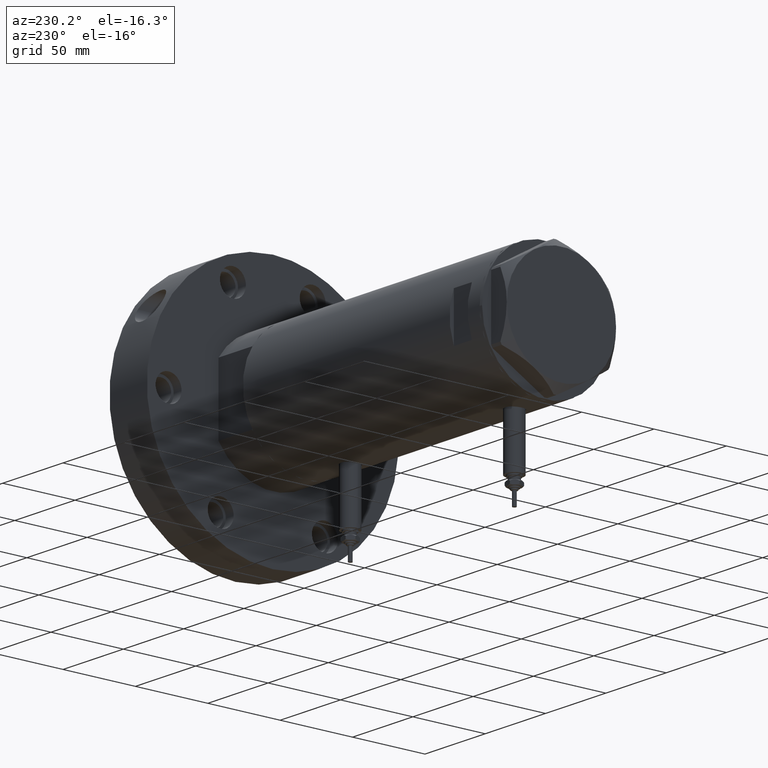
[diagram: clean part render]
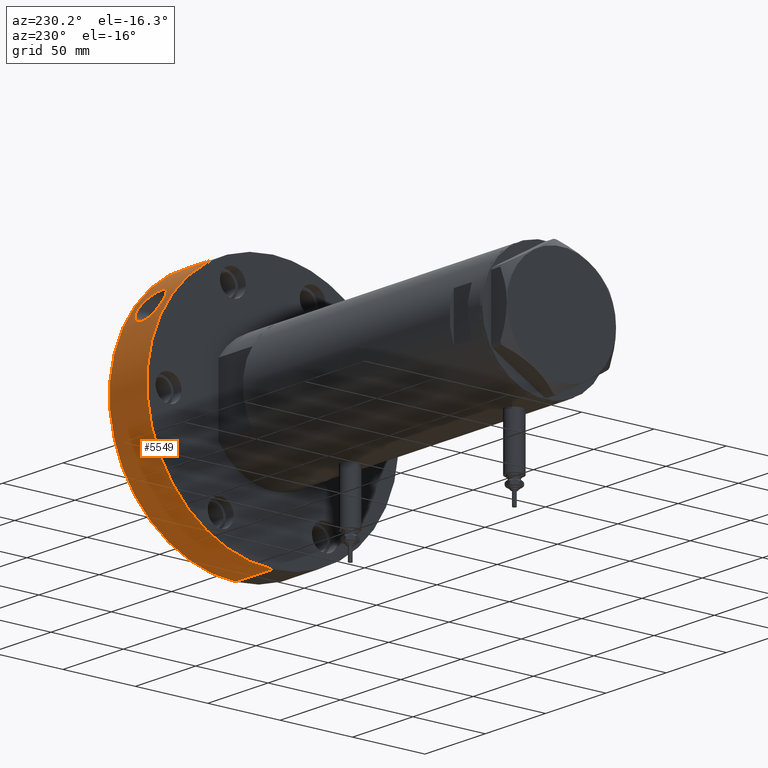
[diagram: same view with one face highlighted and labeled with its STEP entity id]
A machine part, auxiliary view. The second image highlights one B-rep face of the part: STEP entity #5549.
In plain terms, the highlighted cylindrical surface (partial cylindrical patch) has radius 87 mm, axis along (-1, -0, 0).
Its self-contained STEP definition (entity closure, byte-faithful):
#4 = FACE_OUTER_BOUND ( 'NONE', #3415, .T. ) ;
#80 = CARTESIAN_POINT ( 'NONE',  ( 0.000000000000000000, 0.000000000000000000, 31.00000000000000000 ) ) ;
#107 = CARTESIAN_POINT ( 'NONE',  ( 38.95988362184586862, -77.78916722937515260, 16.89377856008809786 ) ) ;
#113 = DIRECTION ( 'NONE',  ( 0.000000000000000000, 0.000000000000000000, 1.000000000000000000 ) ) ;
#253 = CARTESIAN_POINT ( 'NONE',  ( 58.45490391147726683, -64.43639444010645434, 18.43080107607583429 ) ) ;
#328 = CARTESIAN_POINT ( 'NONE',  ( 48.88736590573034135, -71.96544625581941546, 25.50000000000000355 ) ) ;
#453 = CARTESIAN_POINT ( 'NONE',  ( 48.30247523277547828, -72.36018339024451507, 5.512723200080522190 ) ) ;
#477 = CARTESIAN_POINT ( 'NONE',  ( 53.02903169051857901, -68.97411671335549954, 6.377693417634801243 ) ) ;
#572 = CARTESIAN_POINT ( 'NONE',  ( 48.29735643758040453, -72.36624983945537792, 25.50000000000000355 ) ) ;
#606 = CARTESIAN_POINT ( 'NONE',  ( 42.36562863129233136, -75.98835629832981908, 23.08783937509058859 ) ) ;
#616 = DIRECTION ( 'NONE',  ( -0.000000000000000000, -0.000000000000000000, -1.000000000000000000 ) ) ;
#643 = CARTESIAN_POINT ( 'NONE',  ( 39.61878507390480308, -77.45564713954691172, 19.27011269582959230 ) ) ;
#686 = CARTESIAN_POINT ( 'NONE',  ( 0.000000000000000000, 0.000000000000000000, 0.000000000000000000 ) ) ;
#717 = CARTESIAN_POINT ( 'NONE',  ( 41.63827508352151341, -76.39084485103563793, 22.41983642055535952 ) ) ;
#751 = CARTESIAN_POINT ( 'NONE',  ( 54.61841362371032460, -67.72203587842405170, 23.71765578647217154 ) ) ;
#785 = CARTESIAN_POINT ( 'NONE',  ( 55.11451432259645600, -67.31835582116227101, 23.34986043229104169 ) ) ;
#820 = CARTESIAN_POINT ( 'NONE',  ( 57.63933012192551786, -65.16799827479479745, 20.38841847042495203 ) ) ;
#1001 = CARTESIAN_POINT ( 'NONE',  ( 58.09994759138778875, -64.75673879964510604, 11.59481672407559927 ) ) ;
#1022 = CIRCLE ( 'NONE', #2113, 87.00000000000000000 ) ;
#1037 = EDGE_CURVE ( 'NONE', #1681, #5697, #4817, .T. ) ;
#1045 = CARTESIAN_POINT ( 'NONE',  ( 56.50825420125469378, -66.15204602723233052, 8.991213793478745941 ) ) ;
#1094 = CARTESIAN_POINT ( 'NONE',  ( 42.64180251691987422, -75.83379968572944563, 7.683521747921729705 ) ) ;
#1139 = CARTESIAN_POINT ( 'NONE',  ( 40.41186295034255238, -77.04600809697576835, 10.14952324619769186 ) ) ;
#1155 = CARTESIAN_POINT ( 'NONE',  ( 87.00000000000000000, 1.065442715258197209E-14, 31.00000000000000000 ) ) ;
#1177 = CARTESIAN_POINT ( 'NONE',  ( 41.19291114662049580, -76.63125815502247917, 21.92345781722694653 ) ) ;
#1183 = DIRECTION ( 'NONE',  ( -1.000000000000000000, 0.000000000000000000, 0.000000000000000000 ) ) ;
#1184 = DIRECTION ( 'NONE',  ( -0.000000000000000000, -0.000000000000000000, -1.000000000000000000 ) ) ;
#1211 = CARTESIAN_POINT ( 'NONE',  ( 43.13941957114678871, -75.55183523772372212, 23.68944091698644172 ) ) ;
#1333 = EDGE_CURVE ( 'NONE', #3872, #4019, #4024, .T. ) ;
#1424 = CARTESIAN_POINT ( 'NONE',  ( 58.78095589917617758, -64.13893111091917376, 17.00162239926524066 ) ) ;
#1651 = CARTESIAN_POINT ( 'NONE',  ( 58.86845079428158556, -64.05863403617424012, 14.77990071800907756 ) ) ;
#1681 = VERTEX_POINT ( 'NONE', #1155 ) ;
#1703 = CARTESIAN_POINT ( 'NONE',  ( 39.26839487458889977, -77.63389385061502423, 12.67678287845633633 ) ) ;
#1746 = CARTESIAN_POINT ( 'NONE',  ( 41.67513245503538855, -76.36915549097781764, 8.564920305269007272 ) ) ;
#1785 = CARTESIAN_POINT ( 'NONE',  ( 42.39135610311853242, -75.97400373247496930, 7.890215909102982650 ) ) ;
#1887 = CARTESIAN_POINT ( 'NONE',  ( 49.50757850598159848, -71.54412516486078744, 25.50000000000000355 ) ) ;
#1901 = CARTESIAN_POINT ( 'NONE',  ( 87.00000000000000000, 1.065442715258197209E-14, 0.000000000000000000 ) ) ;
#1924 = CARTESIAN_POINT ( 'NONE',  ( 51.88226471496078318, -69.84080568288156599, 25.06036747686935229 ) ) ;
#1948 = CARTESIAN_POINT ( 'NONE',  ( 40.05951066972011887, -77.22870777727329994, 20.21032391934446792 ) ) ;
#1999 = CARTESIAN_POINT ( 'NONE',  ( 53.56654940578292212, -68.55469073411514103, 24.34301470514751387 ) ) ;
#2064 = CARTESIAN_POINT ( 'NONE',  ( 50.10545953346755255, -71.12653177801945503, 5.555886073667557490 ) ) ;
#2105 = CARTESIAN_POINT ( 'NONE',  ( 51.89300993289825925, -69.83281820552377894, 5.943014238919324121 ) ) ;
#2113 = AXIS2_PLACEMENT_3D ( 'NONE', #7366, #4459, #6296 ) ;
#2146 = CARTESIAN_POINT ( 'NONE',  ( 49.50033039789038014, -71.54904892940078298, 5.499999999999995559 ) ) ;
#2157 = VERTEX_POINT ( 'NONE', #6840 ) ;
#2200 = CARTESIAN_POINT ( 'NONE',  ( 46.52813420994646521, -73.51616245379780423, 5.763780444131694658 ) ) ;
#2202 = DIRECTION ( 'NONE',  ( -0.000000000000000000, -0.000000000000000000, -1.000000000000000000 ) ) ;
#2280 = CARTESIAN_POINT ( 'NONE',  ( 47.41387728809479540, -72.94551113164868639, 5.604606240663466465 ) ) ;
#2313 = CARTESIAN_POINT ( 'NONE',  ( 41.01315615263298753, -76.72660900951426299, 9.326487326961411028 ) ) ;
#2360 = CYLINDRICAL_SURFACE ( 'NONE', #2525, 87.00000000000000000 ) ;
#2525 = AXIS2_PLACEMENT_3D ( 'NONE', #80, #616, #1183 ) ;
#2535 = CARTESIAN_POINT ( 'NONE',  ( 50.11399444593302377, -71.12047060475205740, 25.44283205926579683 ) ) ;
#2572 = CARTESIAN_POINT ( 'NONE',  ( 58.55458534148501570, -64.34572788861474635, 18.08430000414218952 ) ) ;
#2671 = CARTESIAN_POINT ( 'NONE',  ( 56.07337710013072041, -66.52177914334670561, 8.517101881127512542 ) ) ;
#2683 = VECTOR ( 'NONE', #1184, 1000.000000000000000 ) ;
#2798 = EDGE_CURVE ( 'NONE', #4019, #3872, #3805, .T. ) ;
#2882 = ORIENTED_EDGE ( 'NONE', *, *, #2798, .T. ) ;
#2960 = CARTESIAN_POINT ( 'NONE',  ( 43.40526761195447136, -75.39947618567215670, 23.86943821453257542 ) ) ;
#3036 = CARTESIAN_POINT ( 'NONE',  ( 48.88736590573034135, -71.96544625581941546, 25.50000000000000355 ) ) ;
#3131 = AXIS2_PLACEMENT_3D ( 'NONE', #686, #113, #5770 ) ;
#3141 = CARTESIAN_POINT ( 'NONE',  ( 58.08745100091303470, -64.76795604485690205, 19.43469343625208623 ) ) ;
#3368 = CARTESIAN_POINT ( 'NONE',  ( 55.12838719177926095, -67.30501853384917865, 7.680289359222849832 ) ) ;
#3415 = EDGE_LOOP ( 'NONE', ( #6861, #3494, #7358, #6444 ) ) ;
#3459 = CARTESIAN_POINT ( 'NONE',  ( 41.90802331783029189, -76.24168083794928918, 8.330918168522380540 ) ) ;
#3494 = ORIENTED_EDGE ( 'NONE', *, *, #3738, .F. ) ;
#3498 = CARTESIAN_POINT ( 'NONE',  ( 42.61930709897865199, -75.84645008915411779, 23.29854270958151474 ) ) ;
#3720 = CARTESIAN_POINT ( 'NONE',  ( 56.69380766696239249, -65.99151987422874299, 21.75848479310371886 ) ) ;
#3738 = EDGE_CURVE ( 'NONE', #4010, #1681, #1022, .T. ) ;
#3741 = CIRCLE ( 'NONE', #3131, 87.00000000000000000 ) ;
#3749 = CARTESIAN_POINT ( 'NONE',  ( 58.86509758581187413, -64.06171670104521354, 16.26345485045560579 ) ) ;
#3805 = B_SPLINE_CURVE_WITH_KNOTS ( 'NONE', 3,
 ( #328, #1887, #2535, #7167, #1924, #5982, #4802, #1999, #6023, #751, #785, #6666, #7132, #7202, #3720, #6061, #820, #3141, #5482, #253, #2572, #4910, #1424, #3749, #6089, #5518, #1651, #5704, #4441, #4478, #5089, #6812, #1001, #3896, #7305, #5665, #4517, #1045, #2671, #4559, #3368, #5010, #7347, #6193, #477, #2105, #4403, #2064, #2146, #6274 ),
 .UNSPECIFIED., .F., .F.,
 ( 4, 2, 2, 2, 2, 2, 2, 2, 2, 2, 2, 2, 2, 2, 2, 2, 2, 2, 2, 2, 2, 2, 2, 2, 4 ),
 ( 0.000000000000000000, 0.002215974017652015161, 0.004431948035304030323, 0.005539935044130060021, 0.006647922052956088852, 0.008863896070608175137, 0.009971883079434208305, 0.01107987008826024321, 0.01329584410591228352, 0.01440383111473830108, 0.01551181812356432037, 0.01661980513239033619, 0.01772779214121635374, 0.01883577915004237130, 0.01994376615886839579, 0.02105175316769441335, 0.02215974017652043437, 0.02326772718534645193, 0.02437571419417247295, 0.02659168821182449072, 0.02769967522065049439, 0.02880766222947649807, 0.03102363624712852277, 0.03323961026478054748, 0.03545558428243256871 ),
 .UNSPECIFIED. ) ;
#3839 = CARTESIAN_POINT ( 'NONE',  ( 43.42801644954508333, -75.38638534081890441, 7.115640536310483988 ) ) ;
#3872 = VERTEX_POINT ( 'NONE', #5237 ) ;
#3896 = CARTESIAN_POINT ( 'NONE',  ( 57.80487156384070602, -65.02027340434179337, 10.96125451572342158 ) ) ;
#4010 = VERTEX_POINT ( 'NONE', #6382 ) ;
#4019 = VERTEX_POINT ( 'NONE', #7153 ) ;
#4024 = B_SPLINE_CURVE_WITH_KNOTS ( 'NONE', 3,
 ( #5681, #7401, #453, #7436, #2280, #2200, #7482, #4577, #4613, #3839, #6326, #1094, #1785, #3459, #1746, #4074, #2313, #1139, #5337, #7026, #1703, #5223, #4652, #5951, #107, #4030, #6408, #4766, #643, #6367, #1948, #6984, #5260, #1177, #717, #606, #3498, #1211, #2960, #5801, #7058, #6445, #7097, #5837, #572, #3036 ),
 .UNSPECIFIED., .F., .F.,
 ( 4, 2, 2, 2, 2, 2, 2, 2, 2, 2, 2, 2, 2, 2, 2, 2, 2, 2, 2, 2, 2, 2, 4 ),
 ( 0.03545558428243256871, 0.03650961450614886167, 0.03756364472986515463, 0.03967170517729773360, 0.04177976562473031952, 0.04283379584844661941, 0.04388782607216291931, 0.04494185629587922615, 0.04599588651959551910, 0.04810394696702812584, 0.05021200741446073257, 0.05232006786189333930, 0.05442812830932594603, 0.05548215853304223899, 0.05653618875675853889, 0.05759021898047483878, 0.05864424920419113868, 0.06075230965162373153, 0.06180633987534001061, 0.06286037009905630357, 0.06496843054648884785, 0.06707649099392137826, 0.06918455144135392254 ),
 .UNSPECIFIED. ) ;
#4030 = CARTESIAN_POINT ( 'NONE',  ( 39.18034001749607853, -77.67823198058938772, 17.92858584324295634 ) ) ;
#4074 = CARTESIAN_POINT ( 'NONE',  ( 41.22829376120527201, -76.61130705770302995, 9.061812708179928677 ) ) ;
#4151 = FACE_BOUND ( 'NONE', #5249, .T. ) ;
#4403 = CARTESIAN_POINT ( 'NONE',  ( 51.30042461220024563, -70.26953132359378174, 5.776507749530386704 ) ) ;
#4441 = CARTESIAN_POINT ( 'NONE',  ( 58.72510912244748482, -64.19013367575983864, 13.66908223378500686 ) ) ;
#4459 = DIRECTION ( 'NONE',  ( 0.000000000000000000, 0.000000000000000000, 1.000000000000000000 ) ) ;
#4478 = CARTESIAN_POINT ( 'NONE',  ( 58.56529462418249210, -64.33597724708928922, 12.95615503906681099 ) ) ;
#4517 = CARTESIAN_POINT ( 'NONE',  ( 57.10432437697451746, -65.63661427941681836, 9.791046281881939706 ) ) ;
#4559 = CARTESIAN_POINT ( 'NONE',  ( 55.37096502141034904, -67.10550582888235738, 7.880101820673491630 ) ) ;
#4577 = CARTESIAN_POINT ( 'NONE',  ( 44.80667710398450510, -74.57753265856264591, 6.350199112964136638 ) ) ;
#4613 = CARTESIAN_POINT ( 'NONE',  ( 44.24713000687746955, -74.91054876410970564, 6.618776480268156348 ) ) ;
#4652 = CARTESIAN_POINT ( 'NONE',  ( 38.88946862251499681, -77.82422010896736708, 14.75373829800887293 ) ) ;
#4766 = CARTESIAN_POINT ( 'NONE',  ( 39.49242740114674888, -77.52008377373145720, 18.94388809933288798 ) ) ;
#4802 = CARTESIAN_POINT ( 'NONE',  ( 53.01701545644852587, -68.98055457143738067, 24.61261004821737330 ) ) ;
#4817 = LINE ( 'NONE', #7148, #2683 ) ;
#4901 = LINE ( 'NONE', #7365, #6584 ) ;
#4910 = CARTESIAN_POINT ( 'NONE',  ( 58.71752677113892815, -64.19707323476268357, 17.37127643351566775 ) ) ;
#5010 = CARTESIAN_POINT ( 'NONE',  ( 54.62647661161580714, -67.71301682253643150, 7.304828891109720779 ) ) ;
#5089 = CARTESIAN_POINT ( 'NONE',  ( 58.46676974358671686, -64.42562723518028633, 12.60784283113572002 ) ) ;
#5215 = ORIENTED_EDGE ( 'NONE', *, *, #1333, .T. ) ;
#5223 = CARTESIAN_POINT ( 'NONE',  ( 38.96781603892250700, -77.78520182908761171, 14.05165989725193754 ) ) ;
#5237 = CARTESIAN_POINT ( 'NONE',  ( 48.88736590573034846, -71.96544625581942967, 5.499999999999998224 ) ) ;
#5249 = EDGE_LOOP ( 'NONE', ( #2882, #5215 ) ) ;
#5260 = CARTESIAN_POINT ( 'NONE',  ( 40.59208178043418513, -76.95020669575434624, 21.09505338428775545 ) ) ;
#5337 = CARTESIAN_POINT ( 'NONE',  ( 40.06684985700191959, -77.22532480748905925, 10.73799083235187801 ) ) ;
#5482 = CARTESIAN_POINT ( 'NONE',  ( 58.22162583481680542, -64.64725055941373455, 19.10540843944069778 ) ) ;
#5518 = CARTESIAN_POINT ( 'NONE',  ( 58.88817785437924357, -64.04047556261016894, 15.15169065714519547 ) ) ;
#5549 = ADVANCED_FACE ( 'NONE', ( #4, #4151 ), #2360, .T. ) ;
#5585 = EDGE_CURVE ( 'NONE', #2157, #5697, #3741, .T. ) ;
#5665 = CARTESIAN_POINT ( 'NONE',  ( 57.29346255452374237, -65.47147009174786092, 10.07289143578799084 ) ) ;
#5681 = CARTESIAN_POINT ( 'NONE',  ( 48.88736590573034846, -71.96544625581942967, 5.499999999999998224 ) ) ;
#5697 = VERTEX_POINT ( 'NONE', #1901 ) ;
#5704 = CARTESIAN_POINT ( 'NONE',  ( 58.78649714031178064, -64.13385102636019042, 14.03446278487251320 ) ) ;
#5770 = DIRECTION ( 'NONE',  ( 1.000000000000000000, 0.000000000000000000, 0.000000000000000000 ) ) ;
#5801 = CARTESIAN_POINT ( 'NONE',  ( 44.21859154851060225, -74.92735964667716075, 24.36601020298088827 ) ) ;
#5837 = CARTESIAN_POINT ( 'NONE',  ( 47.70575230958309021, -72.75747219783886521, 25.44787439411648222 ) ) ;
#5951 = CARTESIAN_POINT ( 'NONE',  ( 38.88534572792090671, -77.82628022031273929, 16.18880256697875097 ) ) ;
#5982 = CARTESIAN_POINT ( 'NONE',  ( 52.73484100046461265, -69.19655646961443551, 24.73522856717565688 ) ) ;
#6023 = CARTESIAN_POINT ( 'NONE',  ( 53.83452072542161204, -68.34439033919656481, 24.19593887010949373 ) ) ;
#6061 = CARTESIAN_POINT ( 'NONE',  ( 57.28793645932059064, -65.47798430457238794, 20.96507766479346913 ) ) ;
#6089 = CARTESIAN_POINT ( 'NONE',  ( 58.88650297487944840, -64.04201565131900509, 15.89346779147384936 ) ) ;
#6193 = CARTESIAN_POINT ( 'NONE',  ( 53.57655318927450594, -68.54929512564875438, 6.646012060745321470 ) ) ;
#6274 = CARTESIAN_POINT ( 'NONE',  ( 48.88736590573034846, -71.96544625581942967, 5.499999999999998224 ) ) ;
#6296 = DIRECTION ( 'NONE',  ( 1.000000000000000000, 0.000000000000000000, 0.000000000000000000 ) ) ;
#6326 = CARTESIAN_POINT ( 'NONE',  ( 43.15940471049924554, -75.54041488966470297, 7.296655873682430737 ) ) ;
#6367 = CARTESIAN_POINT ( 'NONE',  ( 39.90232280406636534, -77.30996080310963237, 19.90333292365907170 ) ) ;
#6382 = CARTESIAN_POINT ( 'NONE',  ( -87.00000000000000000, 0.000000000000000000, 31.00000000000000000 ) ) ;
#6408 = CARTESIAN_POINT ( 'NONE',  ( 39.27248608244922679, -77.63173994716991899, 18.27115873408513380 ) ) ;
#6444 = ORIENTED_EDGE ( 'NONE', *, *, #5585, .T. ) ;
#6445 = CARTESIAN_POINT ( 'NONE',  ( 45.94524752353986230, -73.88165575483878911, 25.07759766692008441 ) ) ;
#6584 = VECTOR ( 'NONE', #2202, 1000.000000000000000 ) ;
#6666 = CARTESIAN_POINT ( 'NONE',  ( 55.81711956069607083, -66.73486228214629534, 22.71650440549445449 ) ) ;
#6812 = CARTESIAN_POINT ( 'NONE',  ( 58.23405487582125772, -64.63605388338480395, 11.92663236224831813 ) ) ;
#6840 = CARTESIAN_POINT ( 'NONE',  ( -87.00000000000000000, 0.000000000000000000, 0.000000000000000000 ) ) ;
#6861 = ORIENTED_EDGE ( 'NONE', *, *, #1037, .F. ) ;
#6951 = EDGE_CURVE ( 'NONE', #4010, #2157, #4901, .T. ) ;
#6984 = CARTESIAN_POINT ( 'NONE',  ( 40.40382510275667016, -77.04913118985014364, 20.80544201149936612 ) ) ;
#7026 = CARTESIAN_POINT ( 'NONE',  ( 39.49531978723893388, -77.51917803994986400, 11.99747171506480470 ) ) ;
#7058 = CARTESIAN_POINT ( 'NONE',  ( 44.78171709924789923, -74.59264468242683677, 24.63947949951446859 ) ) ;
#7097 = CARTESIAN_POINT ( 'NONE',  ( 46.53057644546234428, -73.51458372116090345, 25.23662976042984241 ) ) ;
#7132 = CARTESIAN_POINT ( 'NONE',  ( 56.04435220148312879, -66.54407255503002716, 22.49167241252609628 ) ) ;
#7148 = CARTESIAN_POINT ( 'NONE',  ( 87.00000000000000000, 1.065442715258197209E-14, 31.00000000000000000 ) ) ;
#7153 = CARTESIAN_POINT ( 'NONE',  ( 48.88736590573034135, -71.96544625581941546, 25.50000000000000355 ) ) ;
#7167 = CARTESIAN_POINT ( 'NONE',  ( 51.30134163181767804, -70.26881331817079968, 25.22302669585270962 ) ) ;
#7202 = CARTESIAN_POINT ( 'NONE',  ( 56.48385015257140651, -66.17142644551985597, 22.01147932878292934 ) ) ;
#7305 = CARTESIAN_POINT ( 'NONE',  ( 57.64319087403480069, -65.16376902329113818, 10.65732539178864258 ) ) ;
#7347 = CARTESIAN_POINT ( 'NONE',  ( 54.36709192574259930, -67.92151753313871154, 7.129337081344420568 ) ) ;
#7358 = ORIENTED_EDGE ( 'NONE', *, *, #6951, .T. ) ;
#7365 = CARTESIAN_POINT ( 'NONE',  ( -87.00000000000000000, 0.000000000000000000, 31.00000000000000000 ) ) ;
#7366 = CARTESIAN_POINT ( 'NONE',  ( 0.000000000000000000, 0.000000000000000000, 31.00000000000000000 ) ) ;
#7401 = CARTESIAN_POINT ( 'NONE',  ( 48.59580874140664974, -72.16350605418516295, 5.499999999999997335 ) ) ;
#7436 = CARTESIAN_POINT ( 'NONE',  ( 47.71217013732860579, -72.75076683217376683, 5.564874943743785884 ) ) ;
#7482 = CARTESIAN_POINT ( 'NONE',  ( 45.94715632005818406, -73.88034594288147616, 5.922628494131719989 ) ) ;